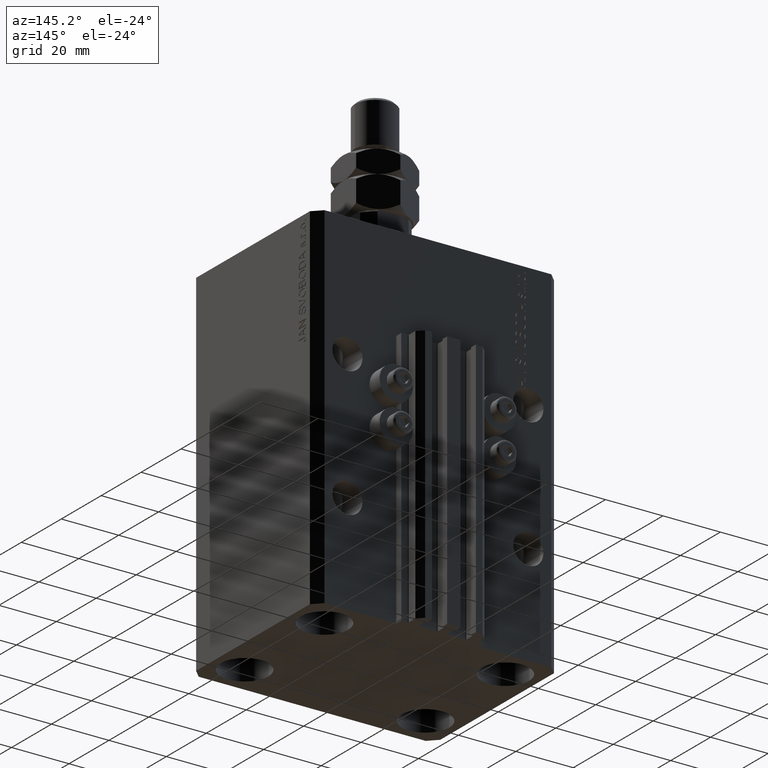
[diagram: clean part render]
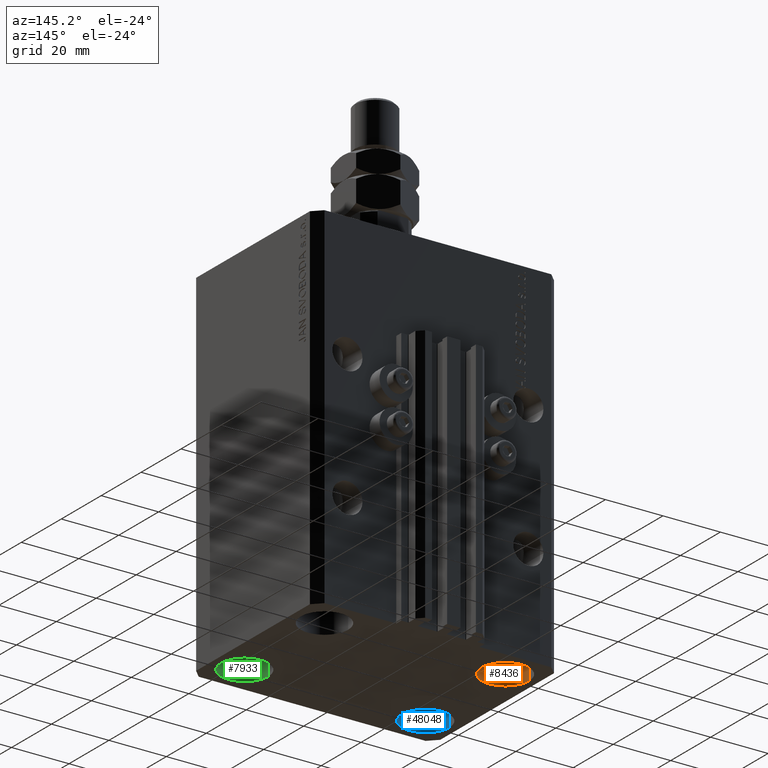
[diagram: same view with three faces highlighted in distinct colors, each labeled with its STEP entity id]
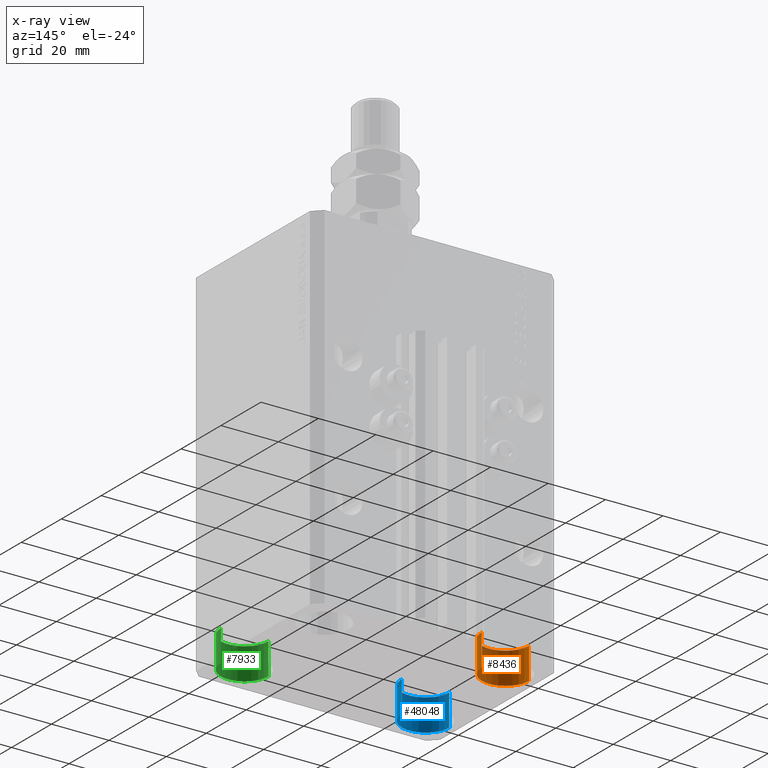
[diagram: x-ray of the same camera — body ghosted, the three highlighted faces saturated]
A machine part, auxiliary view with three faces highlighted in distinct colors.
The next image is the same camera in x-ray (body ghosted, the three faces saturated) — at least one of them is partly hidden behind the body in this view.
Their STEP definitions:

[orange] entity #8436 — the highlighted cylindrical surface (edge-blend (fillet) strip) has radius 8.25 mm, axis along (-0, -0, -1).
#485 = VERTEX_POINT ( 'NONE', #23257 ) ;
#506 = ORIENTED_EDGE ( 'NONE', *, *, #3048, .F. ) ;
#1832 = ORIENTED_EDGE ( 'NONE', *, *, #18436, .T. ) ;
#1928 = VERTEX_POINT ( 'NONE', #21346 ) ;
#2416 = DIRECTION ( 'NONE',  ( 1.000000000000000000, 0.000000000000000000, 0.000000000000000000 ) ) ;
#3048 = EDGE_CURVE ( 'NONE', #27013, #485, #32173, .T. ) ;
#4254 = AXIS2_PLACEMENT_3D ( 'NONE', #14239, #36824, #2416 ) ;
#7405 = EDGE_CURVE ( 'NONE', #43968, #1928, #23517, .T. ) ;
#8436 = ADVANCED_FACE ( 'NONE', ( #16554 ), #13028, .F. ) ;
#13028 = CYLINDRICAL_SURFACE ( 'NONE', #20217, 8.250000000000000000 ) ;
#13808 = DIRECTION ( 'NONE',  ( -0.000000000000000000, -0.000000000000000000, -1.000000000000000000 ) ) ;
#14239 = CARTESIAN_POINT ( 'NONE',  ( -31.50000000000000000, 20.00000000000000000, -112.0000000000000000 ) ) ;
#16554 = FACE_OUTER_BOUND ( 'NONE', #48920, .T. ) ;
#17640 = DIRECTION ( 'NONE',  ( -0.000000000000000000, -0.000000000000000000, -1.000000000000000000 ) ) ;
#17788 = CARTESIAN_POINT ( 'NONE',  ( -39.75000000000000000, 20.00000000000000000, -123.0000000000000000 ) ) ;
#18062 = CARTESIAN_POINT ( 'NONE',  ( -39.75000000000000000, 20.00000000000000000, -112.0000000000000000 ) ) ;
#18436 = EDGE_CURVE ( 'NONE', #1928, #485, #23702, .T. ) ;
#18820 = CARTESIAN_POINT ( 'NONE',  ( -31.50000000000000000, 20.00000000000000000, -123.0000000000000000 ) ) ;
#19036 = EDGE_CURVE ( 'NONE', #43968, #27013, #32875, .T. ) ;
#20217 = AXIS2_PLACEMENT_3D ( 'NONE', #24332, #31844, #27352 ) ;
#21346 = CARTESIAN_POINT ( 'NONE',  ( -23.25000000000000000, 20.00000000000000000, -112.0000000000000000 ) ) ;
#23257 = CARTESIAN_POINT ( 'NONE',  ( -23.25000000000000000, 20.00000000000000000, -123.0000000000000000 ) ) ;
#23517 = CIRCLE ( 'NONE', #4254, 8.250000000000000000 ) ;
#23702 = LINE ( 'NONE', #35230, #25854 ) ;
#24332 = CARTESIAN_POINT ( 'NONE',  ( -31.50000000000000000, 20.00000000000000000, -112.0000000000000000 ) ) ;
#25854 = VECTOR ( 'NONE', #17640, 1000.000000000000000 ) ;
#26603 = AXIS2_PLACEMENT_3D ( 'NONE', #18820, #38381, #45665 ) ;
#27013 = VERTEX_POINT ( 'NONE', #17788 ) ;
#27352 = DIRECTION ( 'NONE',  ( -1.000000000000000000, 0.000000000000000000, 0.000000000000000000 ) ) ;
#31844 = DIRECTION ( 'NONE',  ( -0.000000000000000000, -0.000000000000000000, -1.000000000000000000 ) ) ;
#32173 = CIRCLE ( 'NONE', #26603, 8.250000000000000000 ) ;
#32875 = LINE ( 'NONE', #48442, #37921 ) ;
#35230 = CARTESIAN_POINT ( 'NONE',  ( -23.25000000000000000, 20.00000000000000000, -112.0000000000000000 ) ) ;
#36824 = DIRECTION ( 'NONE',  ( -0.000000000000000000, -0.000000000000000000, 1.000000000000000000 ) ) ;
#37921 = VECTOR ( 'NONE', #13808, 1000.000000000000000 ) ;
#38381 = DIRECTION ( 'NONE',  ( -0.000000000000000000, -0.000000000000000000, 1.000000000000000000 ) ) ;
#42303 = ORIENTED_EDGE ( 'NONE', *, *, #19036, .F. ) ;
#43745 = ORIENTED_EDGE ( 'NONE', *, *, #7405, .T. ) ;
#43968 = VERTEX_POINT ( 'NONE', #18062 ) ;
#45665 = DIRECTION ( 'NONE',  ( 1.000000000000000000, 0.000000000000000000, 0.000000000000000000 ) ) ;
#48442 = CARTESIAN_POINT ( 'NONE',  ( -39.75000000000000000, 20.00000000000000000, -112.0000000000000000 ) ) ;
#48920 = EDGE_LOOP ( 'NONE', ( #43745, #1832, #506, #42303 ) ) ;

[blue] entity #48048 — the highlighted cylindrical surface (edge-blend (fillet) strip) has radius 8.25 mm, axis along (-0, -0, -1).
#247 = LINE ( 'NONE', #15604, #11088 ) ;
#1851 = EDGE_CURVE ( 'NONE', #20501, #37372, #40156, .T. ) ;
#2456 = CARTESIAN_POINT ( 'NONE',  ( -31.50000000000000000, -20.00000000000000000, -123.0000000000000000 ) ) ;
#3160 = DIRECTION ( 'NONE',  ( -1.000000000000000000, 0.000000000000000000, 0.000000000000000000 ) ) ;
#3661 = CARTESIAN_POINT ( 'NONE',  ( -39.75000000000000000, -20.00000000000000000, -112.0000000000000000 ) ) ;
#6924 = DIRECTION ( 'NONE',  ( -0.000000000000000000, -0.000000000000000000, -1.000000000000000000 ) ) ;
#8354 = ORIENTED_EDGE ( 'NONE', *, *, #1851, .T. ) ;
#8793 = DIRECTION ( 'NONE',  ( 1.000000000000000000, 0.000000000000000000, 0.000000000000000000 ) ) ;
#10974 = LINE ( 'NONE', #3661, #19799 ) ;
#11088 = VECTOR ( 'NONE', #23870, 1000.000000000000000 ) ;
#11847 = AXIS2_PLACEMENT_3D ( 'NONE', #2456, #21812, #37117 ) ;
#12721 = CARTESIAN_POINT ( 'NONE',  ( -39.75000000000000000, -20.00000000000000000, -112.0000000000000000 ) ) ;
#13183 = ORIENTED_EDGE ( 'NONE', *, *, #31572, .F. ) ;
#13251 = VERTEX_POINT ( 'NONE', #30805 ) ;
#15604 = CARTESIAN_POINT ( 'NONE',  ( -23.25000000000000000, -20.00000000000000000, -112.0000000000000000 ) ) ;
#17741 = AXIS2_PLACEMENT_3D ( 'NONE', #23634, #35172, #8793 ) ;
#17921 = EDGE_LOOP ( 'NONE', ( #8354, #19186, #37480, #13183 ) ) ;
#19186 = ORIENTED_EDGE ( 'NONE', *, *, #43690, .T. ) ;
#19262 = AXIS2_PLACEMENT_3D ( 'NONE', #29046, #6924, #3160 ) ;
#19799 = VECTOR ( 'NONE', #38313, 1000.000000000000000 ) ;
#20501 = VERTEX_POINT ( 'NONE', #12721 ) ;
#21763 = CYLINDRICAL_SURFACE ( 'NONE', #19262, 8.250000000000000000 ) ;
#21812 = DIRECTION ( 'NONE',  ( -0.000000000000000000, -0.000000000000000000, 1.000000000000000000 ) ) ;
#23634 = CARTESIAN_POINT ( 'NONE',  ( -31.50000000000000000, -20.00000000000000000, -112.0000000000000000 ) ) ;
#23870 = DIRECTION ( 'NONE',  ( -0.000000000000000000, -0.000000000000000000, -1.000000000000000000 ) ) ;
#29046 = CARTESIAN_POINT ( 'NONE',  ( -31.50000000000000000, -20.00000000000000000, -112.0000000000000000 ) ) ;
#29073 = EDGE_CURVE ( 'NONE', #13251, #38741, #47088, .T. ) ;
#30805 = CARTESIAN_POINT ( 'NONE',  ( -39.75000000000000000, -20.00000000000000000, -123.0000000000000000 ) ) ;
#31572 = EDGE_CURVE ( 'NONE', #20501, #13251, #10974, .T. ) ;
#35172 = DIRECTION ( 'NONE',  ( -0.000000000000000000, -0.000000000000000000, 1.000000000000000000 ) ) ;
#37117 = DIRECTION ( 'NONE',  ( 1.000000000000000000, 0.000000000000000000, 0.000000000000000000 ) ) ;
#37372 = VERTEX_POINT ( 'NONE', #49626 ) ;
#37480 = ORIENTED_EDGE ( 'NONE', *, *, #29073, .F. ) ;
#38313 = DIRECTION ( 'NONE',  ( -0.000000000000000000, -0.000000000000000000, -1.000000000000000000 ) ) ;
#38741 = VERTEX_POINT ( 'NONE', #40798 ) ;
#40156 = CIRCLE ( 'NONE', #17741, 8.250000000000000000 ) ;
#40798 = CARTESIAN_POINT ( 'NONE',  ( -23.25000000000000000, -20.00000000000000000, -123.0000000000000000 ) ) ;
#43690 = EDGE_CURVE ( 'NONE', #37372, #38741, #247, .T. ) ;
#44599 = FACE_OUTER_BOUND ( 'NONE', #17921, .T. ) ;
#47088 = CIRCLE ( 'NONE', #11847, 8.250000000000000000 ) ;
#48048 = ADVANCED_FACE ( 'NONE', ( #44599 ), #21763, .F. ) ;
#49626 = CARTESIAN_POINT ( 'NONE',  ( -23.25000000000000000, -20.00000000000000000, -112.0000000000000000 ) ) ;

[green] entity #7933 — the highlighted cylindrical surface (edge-blend (fillet) strip) has radius 8.25 mm, axis along (-0, -0, -1).
#466 = VERTEX_POINT ( 'NONE', #46351 ) ;
#1066 = LINE ( 'NONE', #23945, #20872 ) ;
#2483 = DIRECTION ( 'NONE',  ( -0.000000000000000000, -0.000000000000000000, 1.000000000000000000 ) ) ;
#4026 = CARTESIAN_POINT ( 'NONE',  ( 39.74999999999999289, -20.00000000000000000, -123.0000000000000000 ) ) ;
#4613 = CIRCLE ( 'NONE', #27104, 8.249999999999992895 ) ;
#6318 = FACE_OUTER_BOUND ( 'NONE', #17573, .T. ) ;
#7933 = ADVANCED_FACE ( 'NONE', ( #6318 ), #44735, .F. ) ;
#8933 = CARTESIAN_POINT ( 'NONE',  ( 39.74999999999999289, -20.00000000000000000, -112.0000000000000000 ) ) ;
#9865 = CIRCLE ( 'NONE', #36303, 8.249999999999992895 ) ;
#9984 = CARTESIAN_POINT ( 'NONE',  ( 23.25000000000000355, -20.00000000000000000, -123.0000000000000000 ) ) ;
#10311 = DIRECTION ( 'NONE',  ( 1.000000000000000000, 0.000000000000000000, 0.000000000000000000 ) ) ;
#11194 = ORIENTED_EDGE ( 'NONE', *, *, #33596, .F. ) ;
#13324 = EDGE_CURVE ( 'NONE', #49410, #30191, #16981, .T. ) ;
#13882 = DIRECTION ( 'NONE',  ( -1.000000000000000000, 0.000000000000000000, 0.000000000000000000 ) ) ;
#16454 = ORIENTED_EDGE ( 'NONE', *, *, #13324, .T. ) ;
#16981 = LINE ( 'NONE', #8933, #46873 ) ;
#17573 = EDGE_LOOP ( 'NONE', ( #44526, #16454, #11194, #43490 ) ) ;
#18941 = EDGE_CURVE ( 'NONE', #466, #49410, #9865, .T. ) ;
#20451 = CARTESIAN_POINT ( 'NONE',  ( 39.74999999999999289, -20.00000000000000000, -112.0000000000000000 ) ) ;
#20872 = VECTOR ( 'NONE', #28446, 1000.000000000000000 ) ;
#21404 = VERTEX_POINT ( 'NONE', #9984 ) ;
#21418 = DIRECTION ( 'NONE',  ( -0.000000000000000000, -0.000000000000000000, -1.000000000000000000 ) ) ;
#23945 = CARTESIAN_POINT ( 'NONE',  ( 23.25000000000000355, -20.00000000000000000, -112.0000000000000000 ) ) ;
#25188 = CARTESIAN_POINT ( 'NONE',  ( 31.50000000000000000, -20.00000000000000000, -112.0000000000000000 ) ) ;
#25857 = CARTESIAN_POINT ( 'NONE',  ( 31.50000000000000000, -20.00000000000000000, -112.0000000000000000 ) ) ;
#27104 = AXIS2_PLACEMENT_3D ( 'NONE', #37419, #33904, #10311 ) ;
#28446 = DIRECTION ( 'NONE',  ( -0.000000000000000000, -0.000000000000000000, -1.000000000000000000 ) ) ;
#29048 = AXIS2_PLACEMENT_3D ( 'NONE', #25188, #21418, #13882 ) ;
#30191 = VERTEX_POINT ( 'NONE', #4026 ) ;
#33596 = EDGE_CURVE ( 'NONE', #21404, #30191, #4613, .T. ) ;
#33904 = DIRECTION ( 'NONE',  ( -0.000000000000000000, -0.000000000000000000, 1.000000000000000000 ) ) ;
#36303 = AXIS2_PLACEMENT_3D ( 'NONE', #25857, #2483, #44423 ) ;
#37419 = CARTESIAN_POINT ( 'NONE',  ( 31.50000000000000000, -20.00000000000000000, -123.0000000000000000 ) ) ;
#39073 = DIRECTION ( 'NONE',  ( -0.000000000000000000, -0.000000000000000000, -1.000000000000000000 ) ) ;
#43490 = ORIENTED_EDGE ( 'NONE', *, *, #48491, .F. ) ;
#44423 = DIRECTION ( 'NONE',  ( 1.000000000000000000, 0.000000000000000000, 0.000000000000000000 ) ) ;
#44526 = ORIENTED_EDGE ( 'NONE', *, *, #18941, .T. ) ;
#44735 = CYLINDRICAL_SURFACE ( 'NONE', #29048, 8.249999999999996447 ) ;
#46351 = CARTESIAN_POINT ( 'NONE',  ( 23.25000000000000355, -20.00000000000000000, -112.0000000000000000 ) ) ;
#46873 = VECTOR ( 'NONE', #39073, 1000.000000000000000 ) ;
#48491 = EDGE_CURVE ( 'NONE', #466, #21404, #1066, .T. ) ;
#49410 = VERTEX_POINT ( 'NONE', #20451 ) ;